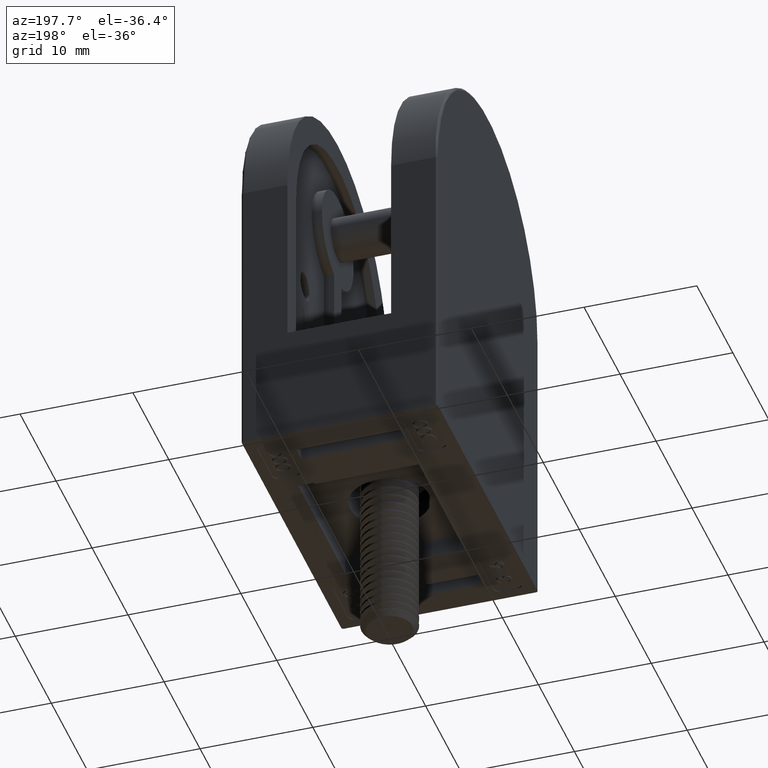
[diagram: clean part render]
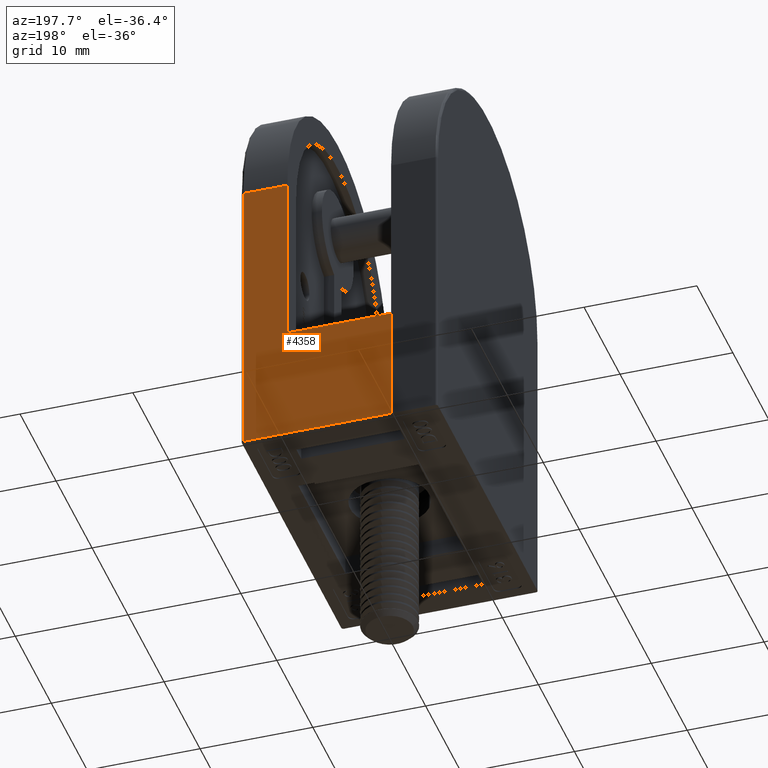
[diagram: same view with one face highlighted and labeled with its STEP entity id]
A machine part, auxiliary view. The second image highlights one B-rep face of the part: STEP entity #4358.
In plain terms, the highlighted planar face has unit normal (0, -1, -0).
Its self-contained STEP definition (entity closure, byte-faithful):
#2092 = VECTOR ( 'NONE', #15549, 1000.000000000000000 ) ;
#4358 = ADVANCED_FACE ( 'NONE', ( #13878 ), #32698, .F. ) ;
#5071 = VERTEX_POINT ( 'NONE', #20905 ) ;
#5904 = VECTOR ( 'NONE', #35943, 1000.000000000000000 ) ;
#6168 = DIRECTION ( 'NONE',  ( -1.000000000000000000, -0.0000000000000000000, -0.0000000000000000000 ) ) ;
#7651 = CARTESIAN_POINT ( 'NONE',  ( 0.2000000000000000900, -13.99999999999999500, -6.938893903907228400E-015 ) ) ;
#10904 = DIRECTION ( 'NONE',  ( -1.000000000000000000, -0.0000000000000000000, -0.0000000000000000000 ) ) ;
#11006 = LINE ( 'NONE', #7651, #38046 ) ;
#11208 = ORIENTED_EDGE ( 'NONE', *, *, #20375, .F. ) ;
#12598 = LINE ( 'NONE', #24440, #5904 ) ;
#13878 = FACE_OUTER_BOUND ( 'NONE', #49718, .T. ) ;
#14282 = DIRECTION ( 'NONE',  ( -1.000000000000000000, -0.0000000000000000000, -0.0000000000000000000 ) ) ;
#15549 = DIRECTION ( 'NONE',  ( -0.0000000000000000000, 3.304235192336776500E-016, -1.000000000000000000 ) ) ;
#16167 = EDGE_CURVE ( 'NONE', #5071, #35721, #37501, .T. ) ;
#17501 = ORIENTED_EDGE ( 'NONE', *, *, #16167, .T. ) ;
#17744 = ORIENTED_EDGE ( 'NONE', *, *, #32660, .T. ) ;
#17815 = VECTOR ( 'NONE', #6168, 1000.000000000000000 ) ;
#17870 = CARTESIAN_POINT ( 'NONE',  ( 4.099999999999999600, -13.99999999999999300, 25.99999999999999600 ) ) ;
#18558 = VERTEX_POINT ( 'NONE', #47997 ) ;
#19243 = VECTOR ( 'NONE', #14282, 1000.000000000000000 ) ;
#20345 = CARTESIAN_POINT ( 'NONE',  ( 4.099999999999999600, -13.99999999999999300, 25.99999999999999600 ) ) ;
#20375 = EDGE_CURVE ( 'NONE', #50728, #34942, #28271, .T. ) ;
#20663 = DIRECTION ( 'NONE',  ( 0.0000000000000000000, 6.672013369141565500E-017, 1.000000000000000000 ) ) ;
#20905 = CARTESIAN_POINT ( 'NONE',  ( 13.29999999999999900, -13.99999999999999800, 10.49999999999999100 ) ) ;
#21040 = CARTESIAN_POINT ( 'NONE',  ( 0.2000000000000000900, -13.99999999999999500, -6.938893903907228400E-015 ) ) ;
#22878 = LINE ( 'NONE', #27734, #2092 ) ;
#24440 = CARTESIAN_POINT ( 'NONE',  ( 4.099999999999999600, -13.99999999999999500, -6.938893903907228400E-015 ) ) ;
#26456 = VERTEX_POINT ( 'NONE', #20345 ) ;
#27442 = CARTESIAN_POINT ( 'NONE',  ( 13.29999999999999900, -13.99999999999999500, -6.938893903907228400E-015 ) ) ;
#27734 = CARTESIAN_POINT ( 'NONE',  ( 13.29999999999999900, -13.99999999999999500, -6.938893903907228400E-015 ) ) ;
#28271 = LINE ( 'NONE', #37521, #17815 ) ;
#29691 = LINE ( 'NONE', #17870, #19243 ) ;
#31238 = DIRECTION ( 'NONE',  ( 0.0000000000000000000, -6.672013369141565500E-017, -1.000000000000000000 ) ) ;
#32660 = EDGE_CURVE ( 'NONE', #26456, #18558, #29691, .T. ) ;
#32698 = PLANE ( 'NONE',  #50211 ) ;
#32940 = ORIENTED_EDGE ( 'NONE', *, *, #34427, .T. ) ;
#34427 = EDGE_CURVE ( 'NONE', #18558, #34942, #11006, .T. ) ;
#34942 = VERTEX_POINT ( 'NONE', #21040 ) ;
#35721 = VERTEX_POINT ( 'NONE', #39340 ) ;
#35943 = DIRECTION ( 'NONE',  ( -0.0000000000000000000, -6.672013369141565500E-017, -1.000000000000000000 ) ) ;
#36989 = ORIENTED_EDGE ( 'NONE', *, *, #40048, .F. ) ;
#37501 = LINE ( 'NONE', #42336, #44284 ) ;
#37521 = CARTESIAN_POINT ( 'NONE',  ( 4.099999999999999600, -13.99999999999999500, -6.938893903907228400E-015 ) ) ;
#37992 = EDGE_CURVE ( 'NONE', #26456, #35721, #12598, .T. ) ;
#38046 = VECTOR ( 'NONE', #31238, 1000.000000000000000 ) ;
#39340 = CARTESIAN_POINT ( 'NONE',  ( 4.099999999999999600, -13.99999999999999500, 10.49999999999999100 ) ) ;
#40048 = EDGE_CURVE ( 'NONE', #5071, #50728, #22878, .T. ) ;
#40637 = CARTESIAN_POINT ( 'NONE',  ( 4.099999999999999600, -13.99999999999999500, -6.938893903907228400E-015 ) ) ;
#42336 = CARTESIAN_POINT ( 'NONE',  ( 13.29999999999999900, -13.99999999999999800, 10.49999999999999100 ) ) ;
#44263 = DIRECTION ( 'NONE',  ( 0.0000000000000000000, 1.000000000000000000, -6.672013369141565500E-017 ) ) ;
#44284 = VECTOR ( 'NONE', #10904, 1000.000000000000000 ) ;
#44987 = ORIENTED_EDGE ( 'NONE', *, *, #37992, .F. ) ;
#47997 = CARTESIAN_POINT ( 'NONE',  ( 0.2000000000000000900, -13.99999999999999300, 25.99999999999999600 ) ) ;
#49718 = EDGE_LOOP ( 'NONE', ( #17744, #32940, #11208, #36989, #17501, #44987 ) ) ;
#50211 = AXIS2_PLACEMENT_3D ( 'NONE', #40637, #44263, #20663 ) ;
#50728 = VERTEX_POINT ( 'NONE', #27442 ) ;